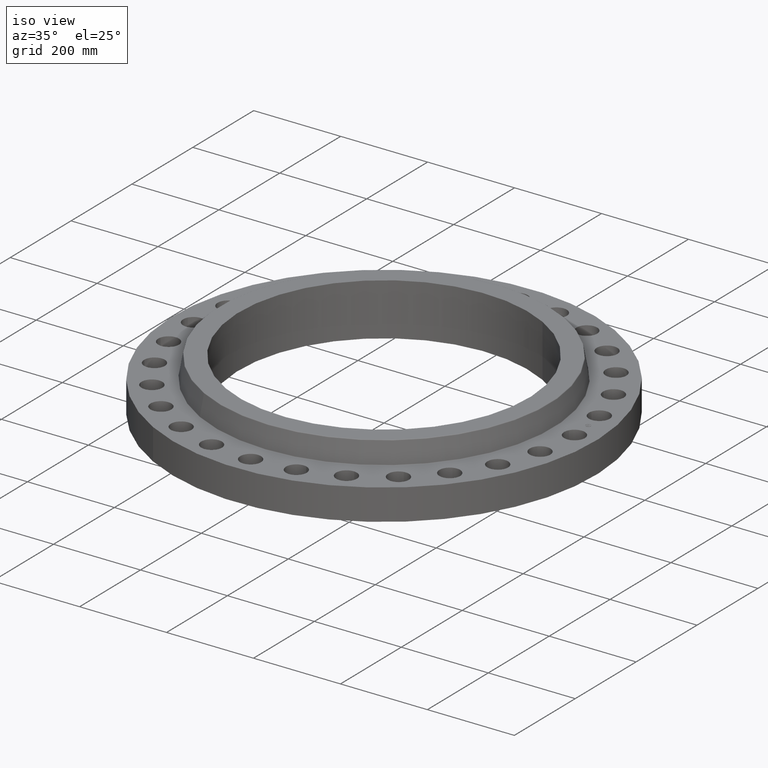
[diagram: clean part render]
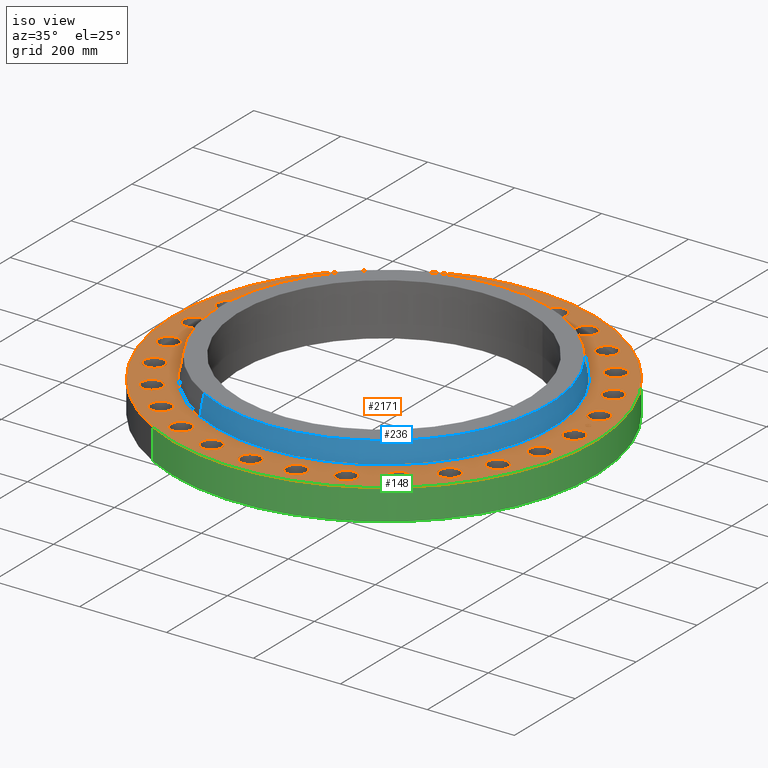
[diagram: same view with three faces highlighted in distinct colors, each labeled with its STEP entity id]
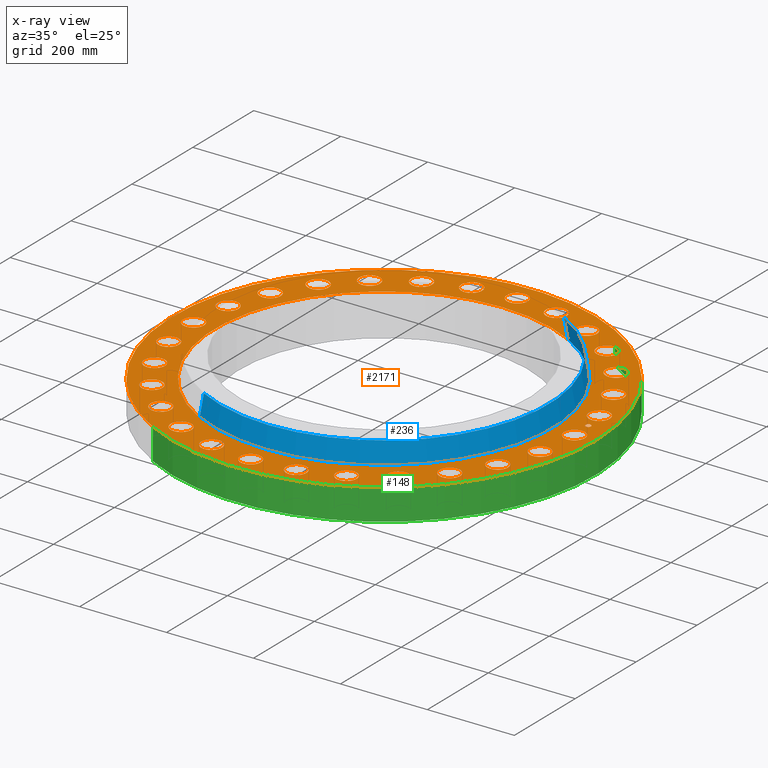
[diagram: x-ray of the same camera — body ghosted, the three highlighted faces saturated]
A machine part, iso view with three faces highlighted in distinct colors.
The next image is the same camera in x-ray (body ghosted, the three faces saturated) — at least one of them is partly hidden behind the body in this view.
Their STEP definitions:

[orange] entity #2171 — the highlighted planar face has unit normal (0, 0, -1).
#65=AXIS2_PLACEMENT_3D('Circle Axis2P3D',#63,#64,$) ;
#82=AXIS2_PLACEMENT_3D('Circle Axis2P3D',#80,#81,$) ;
#115=AXIS2_PLACEMENT_3D('Circle Axis2P3D',#113,#114,$) ;
#139=AXIS2_PLACEMENT_3D('Circle Axis2P3D',#137,#138,$) ;
#156=AXIS2_PLACEMENT_3D('Circle Axis2P3D',#154,#155,$) ;
#191=AXIS2_PLACEMENT_3D('Circle Axis2P3D',#189,#190,$) ;
#888=AXIS2_PLACEMENT_3D('Circle Axis2P3D',#886,#887,$) ;
#900=AXIS2_PLACEMENT_3D('Circle Axis2P3D',#898,#899,$) ;
#931=AXIS2_PLACEMENT_3D('Circle Axis2P3D',#929,#930,$) ;
#943=AXIS2_PLACEMENT_3D('Circle Axis2P3D',#941,#942,$) ;
#974=AXIS2_PLACEMENT_3D('Circle Axis2P3D',#972,#973,$) ;
#986=AXIS2_PLACEMENT_3D('Circle Axis2P3D',#984,#985,$) ;
#1017=AXIS2_PLACEMENT_3D('Circle Axis2P3D',#1015,#1016,$) ;
#1029=AXIS2_PLACEMENT_3D('Circle Axis2P3D',#1027,#1028,$) ;
#1060=AXIS2_PLACEMENT_3D('Circle Axis2P3D',#1058,#1059,$) ;
#1072=AXIS2_PLACEMENT_3D('Circle Axis2P3D',#1070,#1071,$) ;
#1103=AXIS2_PLACEMENT_3D('Circle Axis2P3D',#1101,#1102,$) ;
#1115=AXIS2_PLACEMENT_3D('Circle Axis2P3D',#1113,#1114,$) ;
#1146=AXIS2_PLACEMENT_3D('Circle Axis2P3D',#1144,#1145,$) ;
#1158=AXIS2_PLACEMENT_3D('Circle Axis2P3D',#1156,#1157,$) ;
#1189=AXIS2_PLACEMENT_3D('Circle Axis2P3D',#1187,#1188,$) ;
#1201=AXIS2_PLACEMENT_3D('Circle Axis2P3D',#1199,#1200,$) ;
#1232=AXIS2_PLACEMENT_3D('Circle Axis2P3D',#1230,#1231,$) ;
#1244=AXIS2_PLACEMENT_3D('Circle Axis2P3D',#1242,#1243,$) ;
#1275=AXIS2_PLACEMENT_3D('Circle Axis2P3D',#1273,#1274,$) ;
#1287=AXIS2_PLACEMENT_3D('Circle Axis2P3D',#1285,#1286,$) ;
#1318=AXIS2_PLACEMENT_3D('Circle Axis2P3D',#1316,#1317,$) ;
#1330=AXIS2_PLACEMENT_3D('Circle Axis2P3D',#1328,#1329,$) ;
#1361=AXIS2_PLACEMENT_3D('Circle Axis2P3D',#1359,#1360,$) ;
#1373=AXIS2_PLACEMENT_3D('Circle Axis2P3D',#1371,#1372,$) ;
#1404=AXIS2_PLACEMENT_3D('Circle Axis2P3D',#1402,#1403,$) ;
#1416=AXIS2_PLACEMENT_3D('Circle Axis2P3D',#1414,#1415,$) ;
#1447=AXIS2_PLACEMENT_3D('Circle Axis2P3D',#1445,#1446,$) ;
#1459=AXIS2_PLACEMENT_3D('Circle Axis2P3D',#1457,#1458,$) ;
#1490=AXIS2_PLACEMENT_3D('Circle Axis2P3D',#1488,#1489,$) ;
#1502=AXIS2_PLACEMENT_3D('Circle Axis2P3D',#1500,#1501,$) ;
#1533=AXIS2_PLACEMENT_3D('Circle Axis2P3D',#1531,#1532,$) ;
#1545=AXIS2_PLACEMENT_3D('Circle Axis2P3D',#1543,#1544,$) ;
#1576=AXIS2_PLACEMENT_3D('Circle Axis2P3D',#1574,#1575,$) ;
#1588=AXIS2_PLACEMENT_3D('Circle Axis2P3D',#1586,#1587,$) ;
#1619=AXIS2_PLACEMENT_3D('Circle Axis2P3D',#1617,#1618,$) ;
#1631=AXIS2_PLACEMENT_3D('Circle Axis2P3D',#1629,#1630,$) ;
#1662=AXIS2_PLACEMENT_3D('Circle Axis2P3D',#1660,#1661,$) ;
#1674=AXIS2_PLACEMENT_3D('Circle Axis2P3D',#1672,#1673,$) ;
#1705=AXIS2_PLACEMENT_3D('Circle Axis2P3D',#1703,#1704,$) ;
#1717=AXIS2_PLACEMENT_3D('Circle Axis2P3D',#1715,#1716,$) ;
#1748=AXIS2_PLACEMENT_3D('Circle Axis2P3D',#1746,#1747,$) ;
#1760=AXIS2_PLACEMENT_3D('Circle Axis2P3D',#1758,#1759,$) ;
#1791=AXIS2_PLACEMENT_3D('Circle Axis2P3D',#1789,#1790,$) ;
#1803=AXIS2_PLACEMENT_3D('Circle Axis2P3D',#1801,#1802,$) ;
#1834=AXIS2_PLACEMENT_3D('Circle Axis2P3D',#1832,#1833,$) ;
#1846=AXIS2_PLACEMENT_3D('Circle Axis2P3D',#1844,#1845,$) ;
#1877=AXIS2_PLACEMENT_3D('Circle Axis2P3D',#1875,#1876,$) ;
#1889=AXIS2_PLACEMENT_3D('Circle Axis2P3D',#1887,#1888,$) ;
#1920=AXIS2_PLACEMENT_3D('Circle Axis2P3D',#1918,#1919,$) ;
#1932=AXIS2_PLACEMENT_3D('Circle Axis2P3D',#1930,#1931,$) ;
#1963=AXIS2_PLACEMENT_3D('Circle Axis2P3D',#1961,#1962,$) ;
#1975=AXIS2_PLACEMENT_3D('Circle Axis2P3D',#1973,#1974,$) ;
#2006=AXIS2_PLACEMENT_3D('Circle Axis2P3D',#2004,#2005,$) ;
#2018=AXIS2_PLACEMENT_3D('Circle Axis2P3D',#2016,#2017,$) ;
#2031=AXIS2_PLACEMENT_3D('Plane Axis2P3D',#2028,#2029,#2030) ;
#2155=AXIS2_PLACEMENT_3D('Circle Axis2P3D',#2153,#2154,$) ;
#2164=AXIS2_PLACEMENT_3D('Circle Axis2P3D',#2162,#2163,$) ;
#46=CARTESIAN_POINT('Vertex',(16.4250723919,0.45066000629,2.81000000001)) ;
#60=CARTESIAN_POINT('Vertex',(18.0749276082,-0.45066000629,2.81000000001)) ;
#63=CARTESIAN_POINT('Axis2P3D Location',(17.2500000001,0.,2.81000000001)) ;
#80=CARTESIAN_POINT('Axis2P3D Location',(17.2500000001,0.,2.81000000001)) ;
#110=CARTESIAN_POINT('Vertex',(-9.16901342584,-16.7837664962,2.81000000001)) ;
#113=CARTESIAN_POINT('Axis2P3D Location',(0.,0.,2.81000000001)) ;
#117=CARTESIAN_POINT('Vertex',(9.16901342584,16.7837664962,2.81000000001)) ;
#137=CARTESIAN_POINT('Axis2P3D Location',(0.,0.,2.81000000001)) ;
#154=CARTESIAN_POINT('Axis2P3D Location',(0.,0.,2.81000000001)) ;
#158=CARTESIAN_POINT('Vertex',(7.3353766113,13.4273168211,2.81000000001)) ;
#160=CARTESIAN_POINT('Vertex',(-7.3353766113,-13.4273168211,2.81000000001)) ;
#189=CARTESIAN_POINT('Axis2P3D Location',(0.,0.,2.81000000001)) ;
#876=CARTESIAN_POINT('Vertex',(-16.11354282,3.21556142991,2.81000000001)) ;
#883=CARTESIAN_POINT('Vertex',(-17.5214701505,4.46141079162,2.81000000001)) ;
#886=CARTESIAN_POINT('Axis2P3D Location',(-16.8175064852,3.83848611076,2.81000000001)) ;
#898=CARTESIAN_POINT('Axis2P3D Location',(-16.8175064852,3.83848611076,2.81000000001)) ;
#919=CARTESIAN_POINT('Vertex',(14.9940129267,-6.72054118899,2.81000000001)) ;
#926=CARTESIAN_POINT('Vertex',(16.089413016,-8.24844781062,2.81000000001)) ;
#929=CARTESIAN_POINT('Axis2P3D Location',(15.5417129714,-7.48449449981,2.81000000001)) ;
#941=CARTESIAN_POINT('Axis2P3D Location',(15.5417129714,-7.48449449981,2.81000000001)) ;
#962=CARTESIAN_POINT('Vertex',(-14.9940129267,6.72054118899,2.81000000001)) ;
#969=CARTESIAN_POINT('Vertex',(-16.089413016,8.24844781062,2.81000000001)) ;
#972=CARTESIAN_POINT('Axis2P3D Location',(-15.5417129714,7.48449449981,2.81000000001)) ;
#984=CARTESIAN_POINT('Axis2P3D Location',(-15.5417129714,7.48449449981,2.81000000001)) ;
#1005=CARTESIAN_POINT('Vertex',(13.1226206158,-9.88852495033,2.81000000001)) ;
#1012=CARTESIAN_POINT('Vertex',(13.8505655294,-11.6218732139,2.81000000001)) ;
#1015=CARTESIAN_POINT('Axis2P3D Location',(13.4865930726,-10.7551990821,2.81000000001)) ;
#1027=CARTESIAN_POINT('Axis2P3D Location',(13.4865930726,-10.7551990821,2.81000000001)) ;
#1048=CARTESIAN_POINT('Vertex',(-13.1226206158,9.88852495033,2.81000000001)) ;
#1055=CARTESIAN_POINT('Vertex',(-13.8505655294,11.6218732139,2.81000000001)) ;
#1058=CARTESIAN_POINT('Axis2P3D Location',(-13.4865930726,10.7551990821,2.81000000001)) ;
#1070=CARTESIAN_POINT('Axis2P3D Location',(-13.4865930726,10.7551990821,2.81000000001)) ;
#1091=CARTESIAN_POINT('Vertex',(10.5932053119,-12.5606567798,2.81000000001)) ;
#1098=CARTESIAN_POINT('Vertex',(10.9171928523,-14.4125293655,2.81000000001)) ;
#1101=CARTESIAN_POINT('Axis2P3D Location',(10.7551990821,-13.4865930726,2.81000000001)) ;
#1113=CARTESIAN_POINT('Axis2P3D Location',(10.7551990821,-13.4865930726,2.81000000001)) ;
#1134=CARTESIAN_POINT('Vertex',(-10.5932053119,12.5606567798,2.81000000001)) ;
#1141=CARTESIAN_POINT('Vertex',(-10.9171928523,14.4125293655,2.81000000001)) ;
#1144=CARTESIAN_POINT('Axis2P3D Location',(-10.7551990821,13.4865930726,2.81000000001)) ;
#1156=CARTESIAN_POINT('Axis2P3D Location',(-10.7551990821,13.4865930726,2.81000000001)) ;
#1177=CARTESIAN_POINT('Vertex',(7.53260246035,-14.6029448295,2.81000000001)) ;
#1184=CARTESIAN_POINT('Vertex',(7.43638653927,-16.4804811132,2.81000000001)) ;
#1187=CARTESIAN_POINT('Axis2P3D Location',(7.48449449981,-15.5417129714,2.81000000001)) ;
#1199=CARTESIAN_POINT('Axis2P3D Location',(7.48449449981,-15.5417129714,2.81000000001)) ;
#1220=CARTESIAN_POINT('Vertex',(-7.53260246035,14.6029448295,2.81000000001)) ;
#1227=CARTESIAN_POINT('Vertex',(-7.43638653927,16.4804811132,2.81000000001)) ;
#1230=CARTESIAN_POINT('Axis2P3D Location',(-7.48449449981,15.5417129714,2.81000000001)) ;
#1242=CARTESIAN_POINT('Axis2P3D Location',(-7.48449449981,15.5417129714,2.81000000001)) ;
#1263=CARTESIAN_POINT('Vertex',(4.09428346798,-15.912980249,2.81000000001)) ;
#1270=CARTESIAN_POINT('Vertex',(3.58268875354,-17.7220327214,2.81000000001)) ;
#1273=CARTESIAN_POINT('Axis2P3D Location',(3.83848611076,-16.8175064852,2.81000000001)) ;
#1285=CARTESIAN_POINT('Axis2P3D Location',(3.83848611076,-16.8175064852,2.81000000001)) ;
#1306=CARTESIAN_POINT('Vertex',(-4.09428346798,15.912980249,2.81000000001)) ;
#1313=CARTESIAN_POINT('Vertex',(-3.58268875354,17.7220327214,2.81000000001)) ;
#1316=CARTESIAN_POINT('Axis2P3D Location',(-3.83848611076,16.8175064852,2.81000000001)) ;
#1328=CARTESIAN_POINT('Axis2P3D Location',(-3.83848611076,16.8175064852,2.81000000001)) ;
#1349=CARTESIAN_POINT('Vertex',(0.45066000629,-16.4250723919,2.81000000001)) ;
#1356=CARTESIAN_POINT('Vertex',(-0.45066000629,-18.0749276082,2.81000000001)) ;
#1359=CARTESIAN_POINT('Axis2P3D Location',(2.64859742283E-015,-17.2500000001,2.81000000001)) ;
#1371=CARTESIAN_POINT('Axis2P3D Location',(2.64859742283E-015,-17.2500000001,2.81000000001)) ;
#1392=CARTESIAN_POINT('Vertex',(-0.45066000629,16.4250723919,2.81000000001)) ;
#1399=CARTESIAN_POINT('Vertex',(0.45066000629,18.0749276082,2.81000000001)) ;
#1402=CARTESIAN_POINT('Axis2P3D Location',(-9.30843716397E-016,17.2500000001,2.81000000001)) ;
#1414=CARTESIAN_POINT('Axis2P3D Location',(-9.30843716397E-016,17.2500000001,2.81000000001)) ;
#1435=CARTESIAN_POINT('Vertex',(-3.21556142991,-16.11354282,2.81000000001)) ;
#1442=CARTESIAN_POINT('Vertex',(-4.46141079162,-17.5214701505,2.81000000001)) ;
#1445=CARTESIAN_POINT('Axis2P3D Location',(-3.83848611076,-16.8175064852,2.81000000001)) ;
#1457=CARTESIAN_POINT('Axis2P3D Location',(-3.83848611076,-16.8175064852,2.81000000001)) ;
#1478=CARTESIAN_POINT('Vertex',(3.21556142991,16.11354282,2.81000000001)) ;
#1485=CARTESIAN_POINT('Vertex',(4.46141079162,17.5214701505,2.81000000001)) ;
#1488=CARTESIAN_POINT('Axis2P3D Location',(3.83848611076,16.8175064852,2.81000000001)) ;
#1500=CARTESIAN_POINT('Axis2P3D Location',(3.83848611076,16.8175064852,2.81000000001)) ;
#1521=CARTESIAN_POINT('Vertex',(-6.72054118899,-14.9940129267,2.81000000001)) ;
#1528=CARTESIAN_POINT('Vertex',(-8.24844781062,-16.089413016,2.81000000001)) ;
#1531=CARTESIAN_POINT('Axis2P3D Location',(-7.48449449981,-15.5417129714,2.81000000001)) ;
#1543=CARTESIAN_POINT('Axis2P3D Location',(-7.48449449981,-15.5417129714,2.81000000001)) ;
#1564=CARTESIAN_POINT('Vertex',(6.72054118899,14.9940129267,2.81000000001)) ;
#1571=CARTESIAN_POINT('Vertex',(8.24844781062,16.089413016,2.81000000001)) ;
#1574=CARTESIAN_POINT('Axis2P3D Location',(7.48449449981,15.5417129714,2.81000000001)) ;
#1586=CARTESIAN_POINT('Axis2P3D Location',(7.48449449981,15.5417129714,2.81000000001)) ;
#1607=CARTESIAN_POINT('Vertex',(-9.88852495033,-13.1226206158,2.81000000001)) ;
#1614=CARTESIAN_POINT('Vertex',(-11.6218732139,-13.8505655294,2.81000000001)) ;
#1617=CARTESIAN_POINT('Axis2P3D Location',(-10.7551990821,-13.4865930726,2.81000000001)) ;
#1629=CARTESIAN_POINT('Axis2P3D Location',(-10.7551990821,-13.4865930726,2.81000000001)) ;
#1650=CARTESIAN_POINT('Vertex',(9.88852495033,13.1226206158,2.81000000001)) ;
#1657=CARTESIAN_POINT('Vertex',(11.6218732139,13.8505655294,2.81000000001)) ;
#1660=CARTESIAN_POINT('Axis2P3D Location',(10.7551990821,13.4865930726,2.81000000001)) ;
#1672=CARTESIAN_POINT('Axis2P3D Location',(10.7551990821,13.4865930726,2.81000000001)) ;
#1693=CARTESIAN_POINT('Vertex',(-12.5606567798,-10.5932053119,2.81000000001)) ;
#1700=CARTESIAN_POINT('Vertex',(-14.4125293655,-10.9171928523,2.81000000001)) ;
#1703=CARTESIAN_POINT('Axis2P3D Location',(-13.4865930726,-10.7551990821,2.81000000001)) ;
#1715=CARTESIAN_POINT('Axis2P3D Location',(-13.4865930726,-10.7551990821,2.81000000001)) ;
#1736=CARTESIAN_POINT('Vertex',(12.5606567798,10.5932053119,2.81000000001)) ;
#1743=CARTESIAN_POINT('Vertex',(14.4125293655,10.9171928523,2.81000000001)) ;
#1746=CARTESIAN_POINT('Axis2P3D Location',(13.4865930726,10.7551990821,2.81000000001)) ;
#1758=CARTESIAN_POINT('Axis2P3D Location',(13.4865930726,10.7551990821,2.81000000001)) ;
#1779=CARTESIAN_POINT('Vertex',(-14.6029448295,-7.53260246035,2.81000000001)) ;
#1786=CARTESIAN_POINT('Vertex',(-16.4804811132,-7.43638653927,2.81000000001)) ;
#1789=CARTESIAN_POINT('Axis2P3D Location',(-15.5417129714,-7.48449449981,2.81000000001)) ;
#1801=CARTESIAN_POINT('Axis2P3D Location',(-15.5417129714,-7.48449449981,2.81000000001)) ;
#1822=CARTESIAN_POINT('Vertex',(14.6029448295,7.53260246035,2.81000000001)) ;
#1829=CARTESIAN_POINT('Vertex',(16.4804811132,7.43638653927,2.81000000001)) ;
#1832=CARTESIAN_POINT('Axis2P3D Location',(15.5417129714,7.48449449981,2.81000000001)) ;
#1844=CARTESIAN_POINT('Axis2P3D Location',(15.5417129714,7.48449449981,2.81000000001)) ;
#1865=CARTESIAN_POINT('Vertex',(-15.912980249,-4.09428346798,2.81000000001)) ;
#1872=CARTESIAN_POINT('Vertex',(-17.7220327214,-3.58268875354,2.81000000001)) ;
#1875=CARTESIAN_POINT('Axis2P3D Location',(-16.8175064852,-3.83848611076,2.81000000001)) ;
#1887=CARTESIAN_POINT('Axis2P3D Location',(-16.8175064852,-3.83848611076,2.81000000001)) ;
#1908=CARTESIAN_POINT('Vertex',(15.912980249,4.09428346798,2.81000000001)) ;
#1915=CARTESIAN_POINT('Vertex',(17.7220327214,3.58268875354,2.81000000001)) ;
#1918=CARTESIAN_POINT('Axis2P3D Location',(16.8175064852,3.83848611076,2.81000000001)) ;
#1930=CARTESIAN_POINT('Axis2P3D Location',(16.8175064852,3.83848611076,2.81000000001)) ;
#1951=CARTESIAN_POINT('Vertex',(-16.4250723919,-0.45066000629,2.81000000001)) ;
#1958=CARTESIAN_POINT('Vertex',(-18.0749276082,0.45066000629,2.81000000001)) ;
#1961=CARTESIAN_POINT('Axis2P3D Location',(-17.2500000001,-9.77305459848E-015,2.81000000001)) ;
#1973=CARTESIAN_POINT('Axis2P3D Location',(-17.2500000001,-9.77305459848E-015,2.81000000001)) ;
#1994=CARTESIAN_POINT('Vertex',(16.11354282,-3.21556142991,2.81000000001)) ;
#2001=CARTESIAN_POINT('Vertex',(17.5214701505,-4.46141079162,2.81000000001)) ;
#2004=CARTESIAN_POINT('Axis2P3D Location',(16.8175064852,-3.83848611076,2.81000000001)) ;
#2016=CARTESIAN_POINT('Axis2P3D Location',(16.8175064852,-3.83848611076,2.81000000001)) ;
#2028=CARTESIAN_POINT('Axis2P3D Location',(0.,19.1250000001,2.81000000001)) ;
#2153=CARTESIAN_POINT('Axis2P3D Location',(17.1415356207,1.93138721279,2.81000000001)) ;
#2157=CARTESIAN_POINT('Vertex',(17.1138244129,2.17733098474,2.81000000001)) ;
#2159=CARTESIAN_POINT('Vertex',(17.1692468286,1.68544344084,2.81000000001)) ;
#2162=CARTESIAN_POINT('Axis2P3D Location',(17.1415356207,1.93138721279,2.81000000001)) ;
#64=DIRECTION('Axis2P3D Direction',(0.,-0.,-0.0393700787402)) ;
#81=DIRECTION('Axis2P3D Direction',(0.,-0.,-0.0393700787402)) ;
#114=DIRECTION('Axis2P3D Direction',(0.,0.,-0.0393700787402)) ;
#138=DIRECTION('Axis2P3D Direction',(0.,0.,-0.0393700787402)) ;
#155=DIRECTION('Axis2P3D Direction',(0.,0.,-0.0393700787402)) ;
#190=DIRECTION('Axis2P3D Direction',(0.,0.,-0.0393700787402)) ;
#887=DIRECTION('Axis2P3D Direction',(0.,0.,-0.0393700787402)) ;
#899=DIRECTION('Axis2P3D Direction',(0.,0.,-0.0393700787402)) ;
#930=DIRECTION('Axis2P3D Direction',(0.,-0.,-0.0393700787402)) ;
#942=DIRECTION('Axis2P3D Direction',(0.,-0.,-0.0393700787402)) ;
#973=DIRECTION('Axis2P3D Direction',(0.,0.,-0.0393700787402)) ;
#985=DIRECTION('Axis2P3D Direction',(0.,0.,-0.0393700787402)) ;
#1016=DIRECTION('Axis2P3D Direction',(0.,-0.,-0.0393700787402)) ;
#1028=DIRECTION('Axis2P3D Direction',(0.,-0.,-0.0393700787402)) ;
#1059=DIRECTION('Axis2P3D Direction',(0.,0.,-0.0393700787402)) ;
#1071=DIRECTION('Axis2P3D Direction',(0.,0.,-0.0393700787402)) ;
#1102=DIRECTION('Axis2P3D Direction',(0.,-0.,-0.0393700787402)) ;
#1114=DIRECTION('Axis2P3D Direction',(0.,-0.,-0.0393700787402)) ;
#1145=DIRECTION('Axis2P3D Direction',(0.,0.,-0.0393700787402)) ;
#1157=DIRECTION('Axis2P3D Direction',(0.,0.,-0.0393700787402)) ;
#1188=DIRECTION('Axis2P3D Direction',(0.,-0.,-0.0393700787402)) ;
#1200=DIRECTION('Axis2P3D Direction',(0.,-0.,-0.0393700787402)) ;
#1231=DIRECTION('Axis2P3D Direction',(0.,0.,-0.0393700787402)) ;
#1243=DIRECTION('Axis2P3D Direction',(0.,0.,-0.0393700787402)) ;
#1274=DIRECTION('Axis2P3D Direction',(0.,-0.,-0.0393700787402)) ;
#1286=DIRECTION('Axis2P3D Direction',(0.,-0.,-0.0393700787402)) ;
#1317=DIRECTION('Axis2P3D Direction',(0.,0.,-0.0393700787402)) ;
#1329=DIRECTION('Axis2P3D Direction',(0.,0.,-0.0393700787402)) ;
#1360=DIRECTION('Axis2P3D Direction',(0.,-0.,-0.0393700787402)) ;
#1372=DIRECTION('Axis2P3D Direction',(0.,-0.,-0.0393700787402)) ;
#1403=DIRECTION('Axis2P3D Direction',(0.,0.,-0.0393700787402)) ;
#1415=DIRECTION('Axis2P3D Direction',(0.,0.,-0.0393700787402)) ;
#1446=DIRECTION('Axis2P3D Direction',(-0.,0.,-0.0393700787402)) ;
#1458=DIRECTION('Axis2P3D Direction',(-0.,0.,-0.0393700787402)) ;
#1489=DIRECTION('Axis2P3D Direction',(0.,0.,-0.0393700787402)) ;
#1501=DIRECTION('Axis2P3D Direction',(0.,0.,-0.0393700787402)) ;
#1532=DIRECTION('Axis2P3D Direction',(-0.,0.,-0.0393700787402)) ;
#1544=DIRECTION('Axis2P3D Direction',(-0.,0.,-0.0393700787402)) ;
#1575=DIRECTION('Axis2P3D Direction',(0.,0.,-0.0393700787402)) ;
#1587=DIRECTION('Axis2P3D Direction',(0.,0.,-0.0393700787402)) ;
#1618=DIRECTION('Axis2P3D Direction',(-0.,0.,-0.0393700787402)) ;
#1630=DIRECTION('Axis2P3D Direction',(-0.,0.,-0.0393700787402)) ;
#1661=DIRECTION('Axis2P3D Direction',(0.,0.,-0.0393700787402)) ;
#1673=DIRECTION('Axis2P3D Direction',(0.,0.,-0.0393700787402)) ;
#1704=DIRECTION('Axis2P3D Direction',(-0.,0.,-0.0393700787402)) ;
#1716=DIRECTION('Axis2P3D Direction',(-0.,0.,-0.0393700787402)) ;
#1747=DIRECTION('Axis2P3D Direction',(0.,0.,-0.0393700787402)) ;
#1759=DIRECTION('Axis2P3D Direction',(0.,0.,-0.0393700787402)) ;
#1790=DIRECTION('Axis2P3D Direction',(-0.,0.,-0.0393700787402)) ;
#1802=DIRECTION('Axis2P3D Direction',(-0.,0.,-0.0393700787402)) ;
#1833=DIRECTION('Axis2P3D Direction',(0.,0.,-0.0393700787402)) ;
#1845=DIRECTION('Axis2P3D Direction',(0.,0.,-0.0393700787402)) ;
#1876=DIRECTION('Axis2P3D Direction',(-0.,0.,-0.0393700787402)) ;
#1888=DIRECTION('Axis2P3D Direction',(-0.,0.,-0.0393700787402)) ;
#1919=DIRECTION('Axis2P3D Direction',(0.,0.,-0.0393700787402)) ;
#1931=DIRECTION('Axis2P3D Direction',(0.,0.,-0.0393700787402)) ;
#1962=DIRECTION('Axis2P3D Direction',(-0.,0.,-0.0393700787402)) ;
#1974=DIRECTION('Axis2P3D Direction',(-0.,0.,-0.0393700787402)) ;
#2005=DIRECTION('Axis2P3D Direction',(0.,-0.,-0.0393700787402)) ;
#2017=DIRECTION('Axis2P3D Direction',(0.,-0.,-0.0393700787402)) ;
#2029=DIRECTION('Axis2P3D Direction',(0.,0.,-0.0393700787402)) ;
#2030=DIRECTION('Axis2P3D XDirection',(0.0393700787402,0.,0.)) ;
#2154=DIRECTION('Axis2P3D Direction',(0.,0.,-0.0393700787402)) ;
#2163=DIRECTION('Axis2P3D Direction',(0.,0.,-0.0393700787402)) ;
#2034=ORIENTED_EDGE('',*,*,#141,.F.) ;
#2035=ORIENTED_EDGE('',*,*,#119,.F.) ;
#2038=ORIENTED_EDGE('',*,*,#67,.T.) ;
#2039=ORIENTED_EDGE('',*,*,#84,.T.) ;
#2042=ORIENTED_EDGE('',*,*,#193,.T.) ;
#2043=ORIENTED_EDGE('',*,*,#162,.T.) ;
#2046=ORIENTED_EDGE('',*,*,#2020,.T.) ;
#2047=ORIENTED_EDGE('',*,*,#2008,.T.) ;
#2050=ORIENTED_EDGE('',*,*,#945,.T.) ;
#2051=ORIENTED_EDGE('',*,*,#933,.T.) ;
#2054=ORIENTED_EDGE('',*,*,#1031,.T.) ;
#2055=ORIENTED_EDGE('',*,*,#1019,.T.) ;
#2058=ORIENTED_EDGE('',*,*,#1117,.T.) ;
#2059=ORIENTED_EDGE('',*,*,#1105,.T.) ;
#2062=ORIENTED_EDGE('',*,*,#1203,.T.) ;
#2063=ORIENTED_EDGE('',*,*,#1191,.T.) ;
#2066=ORIENTED_EDGE('',*,*,#1289,.T.) ;
#2067=ORIENTED_EDGE('',*,*,#1277,.T.) ;
#2070=ORIENTED_EDGE('',*,*,#1375,.T.) ;
#2071=ORIENTED_EDGE('',*,*,#1363,.T.) ;
#2074=ORIENTED_EDGE('',*,*,#1461,.T.) ;
#2075=ORIENTED_EDGE('',*,*,#1449,.T.) ;
#2078=ORIENTED_EDGE('',*,*,#1547,.T.) ;
#2079=ORIENTED_EDGE('',*,*,#1535,.T.) ;
#2082=ORIENTED_EDGE('',*,*,#1633,.T.) ;
#2083=ORIENTED_EDGE('',*,*,#1621,.T.) ;
#2086=ORIENTED_EDGE('',*,*,#1719,.T.) ;
#2087=ORIENTED_EDGE('',*,*,#1707,.T.) ;
#2090=ORIENTED_EDGE('',*,*,#1805,.T.) ;
#2091=ORIENTED_EDGE('',*,*,#1793,.T.) ;
#2094=ORIENTED_EDGE('',*,*,#1891,.T.) ;
#2095=ORIENTED_EDGE('',*,*,#1879,.T.) ;
#2098=ORIENTED_EDGE('',*,*,#1977,.T.) ;
#2099=ORIENTED_EDGE('',*,*,#1965,.T.) ;
#2102=ORIENTED_EDGE('',*,*,#902,.T.) ;
#2103=ORIENTED_EDGE('',*,*,#890,.T.) ;
#2106=ORIENTED_EDGE('',*,*,#988,.T.) ;
#2107=ORIENTED_EDGE('',*,*,#976,.T.) ;
#2110=ORIENTED_EDGE('',*,*,#1074,.T.) ;
#2111=ORIENTED_EDGE('',*,*,#1062,.T.) ;
#2114=ORIENTED_EDGE('',*,*,#1160,.T.) ;
#2115=ORIENTED_EDGE('',*,*,#1148,.T.) ;
#2118=ORIENTED_EDGE('',*,*,#1246,.T.) ;
#2119=ORIENTED_EDGE('',*,*,#1234,.T.) ;
#2122=ORIENTED_EDGE('',*,*,#1332,.T.) ;
#2123=ORIENTED_EDGE('',*,*,#1320,.T.) ;
#2126=ORIENTED_EDGE('',*,*,#1418,.T.) ;
#2127=ORIENTED_EDGE('',*,*,#1406,.T.) ;
#2130=ORIENTED_EDGE('',*,*,#1504,.T.) ;
#2131=ORIENTED_EDGE('',*,*,#1492,.T.) ;
#2134=ORIENTED_EDGE('',*,*,#1590,.T.) ;
#2135=ORIENTED_EDGE('',*,*,#1578,.T.) ;
#2138=ORIENTED_EDGE('',*,*,#1676,.T.) ;
#2139=ORIENTED_EDGE('',*,*,#1664,.T.) ;
#2142=ORIENTED_EDGE('',*,*,#1762,.T.) ;
#2143=ORIENTED_EDGE('',*,*,#1750,.T.) ;
#2146=ORIENTED_EDGE('',*,*,#1848,.T.) ;
#2147=ORIENTED_EDGE('',*,*,#1836,.T.) ;
#2150=ORIENTED_EDGE('',*,*,#1934,.T.) ;
#2151=ORIENTED_EDGE('',*,*,#1922,.T.) ;
#2168=ORIENTED_EDGE('',*,*,#2161,.T.) ;
#2169=ORIENTED_EDGE('',*,*,#2166,.T.) ;
#2040=FACE_BOUND('',#2037,.T.) ;
#2044=FACE_BOUND('',#2041,.T.) ;
#2048=FACE_BOUND('',#2045,.T.) ;
#2052=FACE_BOUND('',#2049,.T.) ;
#2056=FACE_BOUND('',#2053,.T.) ;
#2060=FACE_BOUND('',#2057,.T.) ;
#2064=FACE_BOUND('',#2061,.T.) ;
#2068=FACE_BOUND('',#2065,.T.) ;
#2072=FACE_BOUND('',#2069,.T.) ;
#2076=FACE_BOUND('',#2073,.T.) ;
#2080=FACE_BOUND('',#2077,.T.) ;
#2084=FACE_BOUND('',#2081,.T.) ;
#2088=FACE_BOUND('',#2085,.T.) ;
#2092=FACE_BOUND('',#2089,.T.) ;
#2096=FACE_BOUND('',#2093,.T.) ;
#2100=FACE_BOUND('',#2097,.T.) ;
#2104=FACE_BOUND('',#2101,.T.) ;
#2108=FACE_BOUND('',#2105,.T.) ;
#2112=FACE_BOUND('',#2109,.T.) ;
#2116=FACE_BOUND('',#2113,.T.) ;
#2120=FACE_BOUND('',#2117,.T.) ;
#2124=FACE_BOUND('',#2121,.T.) ;
#2128=FACE_BOUND('',#2125,.T.) ;
#2132=FACE_BOUND('',#2129,.T.) ;
#2136=FACE_BOUND('',#2133,.T.) ;
#2140=FACE_BOUND('',#2137,.T.) ;
#2144=FACE_BOUND('',#2141,.T.) ;
#2148=FACE_BOUND('',#2145,.T.) ;
#2152=FACE_BOUND('',#2149,.T.) ;
#2170=FACE_BOUND('',#2167,.T.) ;
#2171=ADVANCED_FACE('PartBody',(#2036,#2040,#2044,#2048,#2052,#2056,#2060,#2064,#2068,#2072,#2076,#2080,#2084,#2088,#2092,#2096,#2100,#2104,#2108,#2112,#2116,#2120,#2124,#2128,#2132,#2136,#2140,#2144,#2148,#2152,#2170),#2032,.F.) ;
#66=CIRCLE('generated circle',#65,0.940000000004) ;
#83=CIRCLE('generated circle',#82,0.940000000004) ;
#116=CIRCLE('generated circle',#115,19.1250000001) ;
#140=CIRCLE('generated circle',#139,19.1250000001) ;
#157=CIRCLE('generated circle',#156,15.3003459779) ;
#192=CIRCLE('generated circle',#191,15.3003459779) ;
#889=CIRCLE('generated circle',#888,0.940000000004) ;
#901=CIRCLE('generated circle',#900,0.940000000004) ;
#932=CIRCLE('generated circle',#931,0.940000000004) ;
#944=CIRCLE('generated circle',#943,0.940000000004) ;
#975=CIRCLE('generated circle',#974,0.940000000004) ;
#987=CIRCLE('generated circle',#986,0.940000000004) ;
#1018=CIRCLE('generated circle',#1017,0.940000000004) ;
#1030=CIRCLE('generated circle',#1029,0.940000000004) ;
#1061=CIRCLE('generated circle',#1060,0.940000000004) ;
#1073=CIRCLE('generated circle',#1072,0.940000000004) ;
#1104=CIRCLE('generated circle',#1103,0.940000000004) ;
#1116=CIRCLE('generated circle',#1115,0.940000000004) ;
#1147=CIRCLE('generated circle',#1146,0.940000000004) ;
#1159=CIRCLE('generated circle',#1158,0.940000000004) ;
#1190=CIRCLE('generated circle',#1189,0.940000000004) ;
#1202=CIRCLE('generated circle',#1201,0.940000000004) ;
#1233=CIRCLE('generated circle',#1232,0.940000000004) ;
#1245=CIRCLE('generated circle',#1244,0.940000000004) ;
#1276=CIRCLE('generated circle',#1275,0.940000000004) ;
#1288=CIRCLE('generated circle',#1287,0.940000000004) ;
#1319=CIRCLE('generated circle',#1318,0.940000000004) ;
#1331=CIRCLE('generated circle',#1330,0.940000000004) ;
#1362=CIRCLE('generated circle',#1361,0.940000000004) ;
#1374=CIRCLE('generated circle',#1373,0.940000000004) ;
#1405=CIRCLE('generated circle',#1404,0.940000000004) ;
#1417=CIRCLE('generated circle',#1416,0.940000000004) ;
#1448=CIRCLE('generated circle',#1447,0.940000000004) ;
#1460=CIRCLE('generated circle',#1459,0.940000000004) ;
#1491=CIRCLE('generated circle',#1490,0.940000000004) ;
#1503=CIRCLE('generated circle',#1502,0.940000000004) ;
#1534=CIRCLE('generated circle',#1533,0.940000000004) ;
#1546=CIRCLE('generated circle',#1545,0.940000000004) ;
#1577=CIRCLE('generated circle',#1576,0.940000000004) ;
#1589=CIRCLE('generated circle',#1588,0.940000000004) ;
#1620=CIRCLE('generated circle',#1619,0.940000000004) ;
#1632=CIRCLE('generated circle',#1631,0.940000000004) ;
#1663=CIRCLE('generated circle',#1662,0.940000000004) ;
#1675=CIRCLE('generated circle',#1674,0.940000000004) ;
#1706=CIRCLE('generated circle',#1705,0.940000000004) ;
#1718=CIRCLE('generated circle',#1717,0.940000000004) ;
#1749=CIRCLE('generated circle',#1748,0.940000000004) ;
#1761=CIRCLE('generated circle',#1760,0.940000000004) ;
#1792=CIRCLE('generated circle',#1791,0.940000000004) ;
#1804=CIRCLE('generated circle',#1803,0.940000000004) ;
#1835=CIRCLE('generated circle',#1834,0.940000000004) ;
#1847=CIRCLE('generated circle',#1846,0.940000000004) ;
#1878=CIRCLE('generated circle',#1877,0.940000000004) ;
#1890=CIRCLE('generated circle',#1889,0.940000000004) ;
#1921=CIRCLE('generated circle',#1920,0.940000000004) ;
#1933=CIRCLE('generated circle',#1932,0.940000000004) ;
#1964=CIRCLE('generated circle',#1963,0.940000000004) ;
#1976=CIRCLE('generated circle',#1975,0.940000000004) ;
#2007=CIRCLE('generated circle',#2006,0.940000000004) ;
#2019=CIRCLE('generated circle',#2018,0.940000000004) ;
#2156=CIRCLE('generated circle',#2155,0.247500000001) ;
#2165=CIRCLE('generated circle',#2164,0.247500000001) ;
#67=EDGE_CURVE('',#47,#61,#66,.T.) ;
#84=EDGE_CURVE('',#61,#47,#83,.T.) ;
#119=EDGE_CURVE('',#111,#118,#116,.T.) ;
#141=EDGE_CURVE('',#118,#111,#140,.T.) ;
#162=EDGE_CURVE('',#159,#161,#157,.T.) ;
#193=EDGE_CURVE('',#161,#159,#192,.T.) ;
#890=EDGE_CURVE('',#877,#884,#889,.T.) ;
#902=EDGE_CURVE('',#884,#877,#901,.T.) ;
#933=EDGE_CURVE('',#920,#927,#932,.T.) ;
#945=EDGE_CURVE('',#927,#920,#944,.T.) ;
#976=EDGE_CURVE('',#963,#970,#975,.T.) ;
#988=EDGE_CURVE('',#970,#963,#987,.T.) ;
#1019=EDGE_CURVE('',#1006,#1013,#1018,.T.) ;
#1031=EDGE_CURVE('',#1013,#1006,#1030,.T.) ;
#1062=EDGE_CURVE('',#1049,#1056,#1061,.T.) ;
#1074=EDGE_CURVE('',#1056,#1049,#1073,.T.) ;
#1105=EDGE_CURVE('',#1092,#1099,#1104,.T.) ;
#1117=EDGE_CURVE('',#1099,#1092,#1116,.T.) ;
#1148=EDGE_CURVE('',#1135,#1142,#1147,.T.) ;
#1160=EDGE_CURVE('',#1142,#1135,#1159,.T.) ;
#1191=EDGE_CURVE('',#1178,#1185,#1190,.T.) ;
#1203=EDGE_CURVE('',#1185,#1178,#1202,.T.) ;
#1234=EDGE_CURVE('',#1221,#1228,#1233,.T.) ;
#1246=EDGE_CURVE('',#1228,#1221,#1245,.T.) ;
#1277=EDGE_CURVE('',#1264,#1271,#1276,.T.) ;
#1289=EDGE_CURVE('',#1271,#1264,#1288,.T.) ;
#1320=EDGE_CURVE('',#1307,#1314,#1319,.T.) ;
#1332=EDGE_CURVE('',#1314,#1307,#1331,.T.) ;
#1363=EDGE_CURVE('',#1350,#1357,#1362,.T.) ;
#1375=EDGE_CURVE('',#1357,#1350,#1374,.T.) ;
#1406=EDGE_CURVE('',#1393,#1400,#1405,.T.) ;
#1418=EDGE_CURVE('',#1400,#1393,#1417,.T.) ;
#1449=EDGE_CURVE('',#1436,#1443,#1448,.T.) ;
#1461=EDGE_CURVE('',#1443,#1436,#1460,.T.) ;
#1492=EDGE_CURVE('',#1479,#1486,#1491,.T.) ;
#1504=EDGE_CURVE('',#1486,#1479,#1503,.T.) ;
#1535=EDGE_CURVE('',#1522,#1529,#1534,.T.) ;
#1547=EDGE_CURVE('',#1529,#1522,#1546,.T.) ;
#1578=EDGE_CURVE('',#1565,#1572,#1577,.T.) ;
#1590=EDGE_CURVE('',#1572,#1565,#1589,.T.) ;
#1621=EDGE_CURVE('',#1608,#1615,#1620,.T.) ;
#1633=EDGE_CURVE('',#1615,#1608,#1632,.T.) ;
#1664=EDGE_CURVE('',#1651,#1658,#1663,.T.) ;
#1676=EDGE_CURVE('',#1658,#1651,#1675,.T.) ;
#1707=EDGE_CURVE('',#1694,#1701,#1706,.T.) ;
#1719=EDGE_CURVE('',#1701,#1694,#1718,.T.) ;
#1750=EDGE_CURVE('',#1737,#1744,#1749,.T.) ;
#1762=EDGE_CURVE('',#1744,#1737,#1761,.T.) ;
#1793=EDGE_CURVE('',#1780,#1787,#1792,.T.) ;
#1805=EDGE_CURVE('',#1787,#1780,#1804,.T.) ;
#1836=EDGE_CURVE('',#1823,#1830,#1835,.T.) ;
#1848=EDGE_CURVE('',#1830,#1823,#1847,.T.) ;
#1879=EDGE_CURVE('',#1866,#1873,#1878,.T.) ;
#1891=EDGE_CURVE('',#1873,#1866,#1890,.T.) ;
#1922=EDGE_CURVE('',#1909,#1916,#1921,.T.) ;
#1934=EDGE_CURVE('',#1916,#1909,#1933,.T.) ;
#1965=EDGE_CURVE('',#1952,#1959,#1964,.T.) ;
#1977=EDGE_CURVE('',#1959,#1952,#1976,.T.) ;
#2008=EDGE_CURVE('',#1995,#2002,#2007,.T.) ;
#2020=EDGE_CURVE('',#2002,#1995,#2019,.T.) ;
#2161=EDGE_CURVE('',#2158,#2160,#2156,.T.) ;
#2166=EDGE_CURVE('',#2160,#2158,#2165,.T.) ;
#2033=EDGE_LOOP('',(#2034,#2035)) ;
#2037=EDGE_LOOP('',(#2038,#2039)) ;
#2041=EDGE_LOOP('',(#2042,#2043)) ;
#2045=EDGE_LOOP('',(#2046,#2047)) ;
#2049=EDGE_LOOP('',(#2050,#2051)) ;
#2053=EDGE_LOOP('',(#2054,#2055)) ;
#2057=EDGE_LOOP('',(#2058,#2059)) ;
#2061=EDGE_LOOP('',(#2062,#2063)) ;
#2065=EDGE_LOOP('',(#2066,#2067)) ;
#2069=EDGE_LOOP('',(#2070,#2071)) ;
#2073=EDGE_LOOP('',(#2074,#2075)) ;
#2077=EDGE_LOOP('',(#2078,#2079)) ;
#2081=EDGE_LOOP('',(#2082,#2083)) ;
#2085=EDGE_LOOP('',(#2086,#2087)) ;
#2089=EDGE_LOOP('',(#2090,#2091)) ;
#2093=EDGE_LOOP('',(#2094,#2095)) ;
#2097=EDGE_LOOP('',(#2098,#2099)) ;
#2101=EDGE_LOOP('',(#2102,#2103)) ;
#2105=EDGE_LOOP('',(#2106,#2107)) ;
#2109=EDGE_LOOP('',(#2110,#2111)) ;
#2113=EDGE_LOOP('',(#2114,#2115)) ;
#2117=EDGE_LOOP('',(#2118,#2119)) ;
#2121=EDGE_LOOP('',(#2122,#2123)) ;
#2125=EDGE_LOOP('',(#2126,#2127)) ;
#2129=EDGE_LOOP('',(#2130,#2131)) ;
#2133=EDGE_LOOP('',(#2134,#2135)) ;
#2137=EDGE_LOOP('',(#2138,#2139)) ;
#2141=EDGE_LOOP('',(#2142,#2143)) ;
#2145=EDGE_LOOP('',(#2146,#2147)) ;
#2149=EDGE_LOOP('',(#2150,#2151)) ;
#2167=EDGE_LOOP('',(#2168,#2169)) ;
#2036=FACE_OUTER_BOUND('',#2033,.T.) ;
#2032=PLANE('',#2031) ;
#47=VERTEX_POINT('',#46) ;
#61=VERTEX_POINT('',#60) ;
#111=VERTEX_POINT('',#110) ;
#118=VERTEX_POINT('',#117) ;
#159=VERTEX_POINT('',#158) ;
#161=VERTEX_POINT('',#160) ;
#877=VERTEX_POINT('',#876) ;
#884=VERTEX_POINT('',#883) ;
#920=VERTEX_POINT('',#919) ;
#927=VERTEX_POINT('',#926) ;
#963=VERTEX_POINT('',#962) ;
#970=VERTEX_POINT('',#969) ;
#1006=VERTEX_POINT('',#1005) ;
#1013=VERTEX_POINT('',#1012) ;
#1049=VERTEX_POINT('',#1048) ;
#1056=VERTEX_POINT('',#1055) ;
#1092=VERTEX_POINT('',#1091) ;
#1099=VERTEX_POINT('',#1098) ;
#1135=VERTEX_POINT('',#1134) ;
#1142=VERTEX_POINT('',#1141) ;
#1178=VERTEX_POINT('',#1177) ;
#1185=VERTEX_POINT('',#1184) ;
#1221=VERTEX_POINT('',#1220) ;
#1228=VERTEX_POINT('',#1227) ;
#1264=VERTEX_POINT('',#1263) ;
#1271=VERTEX_POINT('',#1270) ;
#1307=VERTEX_POINT('',#1306) ;
#1314=VERTEX_POINT('',#1313) ;
#1350=VERTEX_POINT('',#1349) ;
#1357=VERTEX_POINT('',#1356) ;
#1393=VERTEX_POINT('',#1392) ;
#1400=VERTEX_POINT('',#1399) ;
#1436=VERTEX_POINT('',#1435) ;
#1443=VERTEX_POINT('',#1442) ;
#1479=VERTEX_POINT('',#1478) ;
#1486=VERTEX_POINT('',#1485) ;
#1522=VERTEX_POINT('',#1521) ;
#1529=VERTEX_POINT('',#1528) ;
#1565=VERTEX_POINT('',#1564) ;
#1572=VERTEX_POINT('',#1571) ;
#1608=VERTEX_POINT('',#1607) ;
#1615=VERTEX_POINT('',#1614) ;
#1651=VERTEX_POINT('',#1650) ;
#1658=VERTEX_POINT('',#1657) ;
#1694=VERTEX_POINT('',#1693) ;
#1701=VERTEX_POINT('',#1700) ;
#1737=VERTEX_POINT('',#1736) ;
#1744=VERTEX_POINT('',#1743) ;
#1780=VERTEX_POINT('',#1779) ;
#1787=VERTEX_POINT('',#1786) ;
#1823=VERTEX_POINT('',#1822) ;
#1830=VERTEX_POINT('',#1829) ;
#1866=VERTEX_POINT('',#1865) ;
#1873=VERTEX_POINT('',#1872) ;
#1909=VERTEX_POINT('',#1908) ;
#1916=VERTEX_POINT('',#1915) ;
#1952=VERTEX_POINT('',#1951) ;
#1959=VERTEX_POINT('',#1958) ;
#1995=VERTEX_POINT('',#1994) ;
#2002=VERTEX_POINT('',#2001) ;
#2158=VERTEX_POINT('',#2157) ;
#2160=VERTEX_POINT('',#2159) ;

[blue] entity #236 — the highlighted conical surface has half-angle 10 deg.
#172=AXIS2_PLACEMENT_3D('Circle Axis2P3D',#170,#171,$) ;
#209=AXIS2_PLACEMENT_3D('Cone Axis2P3D',#206,#207,#208) ;
#220=AXIS2_PLACEMENT_3D('Circle Axis2P3D',#218,#219,$) ;
#167=CARTESIAN_POINT('Vertex',(7.30704809206,13.3754618145,2.85958110935)) ;
#170=CARTESIAN_POINT('Axis2P3D Location',(0.,0.,2.85958110935)) ;
#174=CARTESIAN_POINT('Vertex',(-7.30704809206,-13.3754618145,2.85958110935)) ;
#206=CARTESIAN_POINT('Axis2P3D Location',(0.,0.,4.70041889068)) ;
#211=CARTESIAN_POINT('Line Origine',(7.22923987578,13.2330348299,3.78000000002)) ;
#215=CARTESIAN_POINT('Vertex',(7.1514316595,13.0906078454,4.70041889068)) ;
#218=CARTESIAN_POINT('Axis2P3D Location',(0.,0.,4.70041889068)) ;
#222=CARTESIAN_POINT('Vertex',(-7.1514316595,-13.0906078454,4.70041889068)) ;
#225=CARTESIAN_POINT('Line Origine',(-7.22923987578,-13.2330348299,3.78000000002)) ;
#171=DIRECTION('Axis2P3D Direction',(0.,0.,-0.0393700787402)) ;
#207=DIRECTION('Axis2P3D Direction',(0.,0.,-0.0393700787402)) ;
#208=DIRECTION('Axis2P3D XDirection',(-0.0188750212049,-0.0345504945626,0.)) ;
#212=DIRECTION('Vector Direction',(0.00327761303565,0.00599963041829,-0.03877195878)) ;
#219=DIRECTION('Axis2P3D Direction',(0.,0.,-0.0393700787402)) ;
#226=DIRECTION('Vector Direction',(-0.00327761303565,-0.00599963041829,-0.03877195878)) ;
#213=VECTOR('Line Direction',#212,0.0393700787402) ;
#227=VECTOR('Line Direction',#226,0.0393700787402) ;
#231=ORIENTED_EDGE('',*,*,#176,.F.) ;
#232=ORIENTED_EDGE('',*,*,#217,.T.) ;
#233=ORIENTED_EDGE('',*,*,#224,.T.) ;
#234=ORIENTED_EDGE('',*,*,#229,.F.) ;
#236=ADVANCED_FACE('PartBody',(#235),#210,.T.) ;
#173=CIRCLE('generated circle',#172,15.2412575128) ;
#221=CIRCLE('generated circle',#220,14.9166681448) ;
#210=CONICAL_SURFACE('Cone',#209,14.9166681448,0.174532925199) ;
#176=EDGE_CURVE('',#168,#175,#173,.T.) ;
#217=EDGE_CURVE('',#168,#216,#214,.F.) ;
#224=EDGE_CURVE('',#216,#223,#221,.T.) ;
#229=EDGE_CURVE('',#175,#223,#228,.F.) ;
#230=EDGE_LOOP('',(#231,#232,#233,#234)) ;
#235=FACE_OUTER_BOUND('',#230,.T.) ;
#214=LINE('Line',#211,#213) ;
#228=LINE('Line',#225,#227) ;
#168=VERTEX_POINT('',#167) ;
#175=VERTEX_POINT('',#174) ;
#216=VERTEX_POINT('',#215) ;
#223=VERTEX_POINT('',#222) ;

[green] entity #148 — the highlighted cylindrical surface (partial cylindrical patch) has radius 485.775 mm, axis along (0, 0, -1).
#95=AXIS2_PLACEMENT_3D('Cylinder Axis2P3D',#92,#93,#94) ;
#134=AXIS2_PLACEMENT_3D('Circle Axis2P3D',#132,#133,$) ;
#139=AXIS2_PLACEMENT_3D('Circle Axis2P3D',#137,#138,$) ;
#92=CARTESIAN_POINT('Axis2P3D Location',(0.,0.,2.37500000001)) ;
#101=CARTESIAN_POINT('Vertex',(-9.16901342584,-16.7837664962,2.51767111096E-015)) ;
#103=CARTESIAN_POINT('Vertex',(9.16901342584,16.7837664962,2.51767111096E-015)) ;
#106=CARTESIAN_POINT('Line Origine',(-9.16901342584,-16.7837664962,1.40500000001)) ;
#110=CARTESIAN_POINT('Vertex',(-9.16901342584,-16.7837664962,2.81000000001)) ;
#117=CARTESIAN_POINT('Vertex',(9.16901342584,16.7837664962,2.81000000001)) ;
#120=CARTESIAN_POINT('Line Origine',(9.16901342584,16.7837664962,1.40500000001)) ;
#132=CARTESIAN_POINT('Axis2P3D Location',(0.,0.,2.23792987641E-015)) ;
#137=CARTESIAN_POINT('Axis2P3D Location',(0.,0.,2.81000000001)) ;
#93=DIRECTION('Axis2P3D Direction',(0.,0.,-0.0393700787402)) ;
#94=DIRECTION('Axis2P3D XDirection',(0.0188750212049,0.0345504945626,0.)) ;
#107=DIRECTION('Vector Direction',(0.,0.,-0.0393700787402)) ;
#121=DIRECTION('Vector Direction',(0.,0.,-0.0393700787402)) ;
#133=DIRECTION('Axis2P3D Direction',(0.,0.,-0.0393700787402)) ;
#138=DIRECTION('Axis2P3D Direction',(0.,0.,-0.0393700787402)) ;
#108=VECTOR('Line Direction',#107,0.0393700787402) ;
#122=VECTOR('Line Direction',#121,0.0393700787402) ;
#143=ORIENTED_EDGE('',*,*,#136,.F.) ;
#144=ORIENTED_EDGE('',*,*,#124,.T.) ;
#145=ORIENTED_EDGE('',*,*,#141,.T.) ;
#146=ORIENTED_EDGE('',*,*,#112,.F.) ;
#148=ADVANCED_FACE('PartBody',(#147),#96,.T.) ;
#135=CIRCLE('generated circle',#134,19.1250000001) ;
#140=CIRCLE('generated circle',#139,19.1250000001) ;
#96=CYLINDRICAL_SURFACE('generated cylinder',#95,19.1250000001) ;
#112=EDGE_CURVE('',#102,#111,#109,.F.) ;
#124=EDGE_CURVE('',#104,#118,#123,.F.) ;
#136=EDGE_CURVE('',#104,#102,#135,.T.) ;
#141=EDGE_CURVE('',#118,#111,#140,.T.) ;
#142=EDGE_LOOP('',(#143,#144,#145,#146)) ;
#147=FACE_OUTER_BOUND('',#142,.T.) ;
#109=LINE('Line',#106,#108) ;
#123=LINE('Line',#120,#122) ;
#102=VERTEX_POINT('',#101) ;
#104=VERTEX_POINT('',#103) ;
#111=VERTEX_POINT('',#110) ;
#118=VERTEX_POINT('',#117) ;